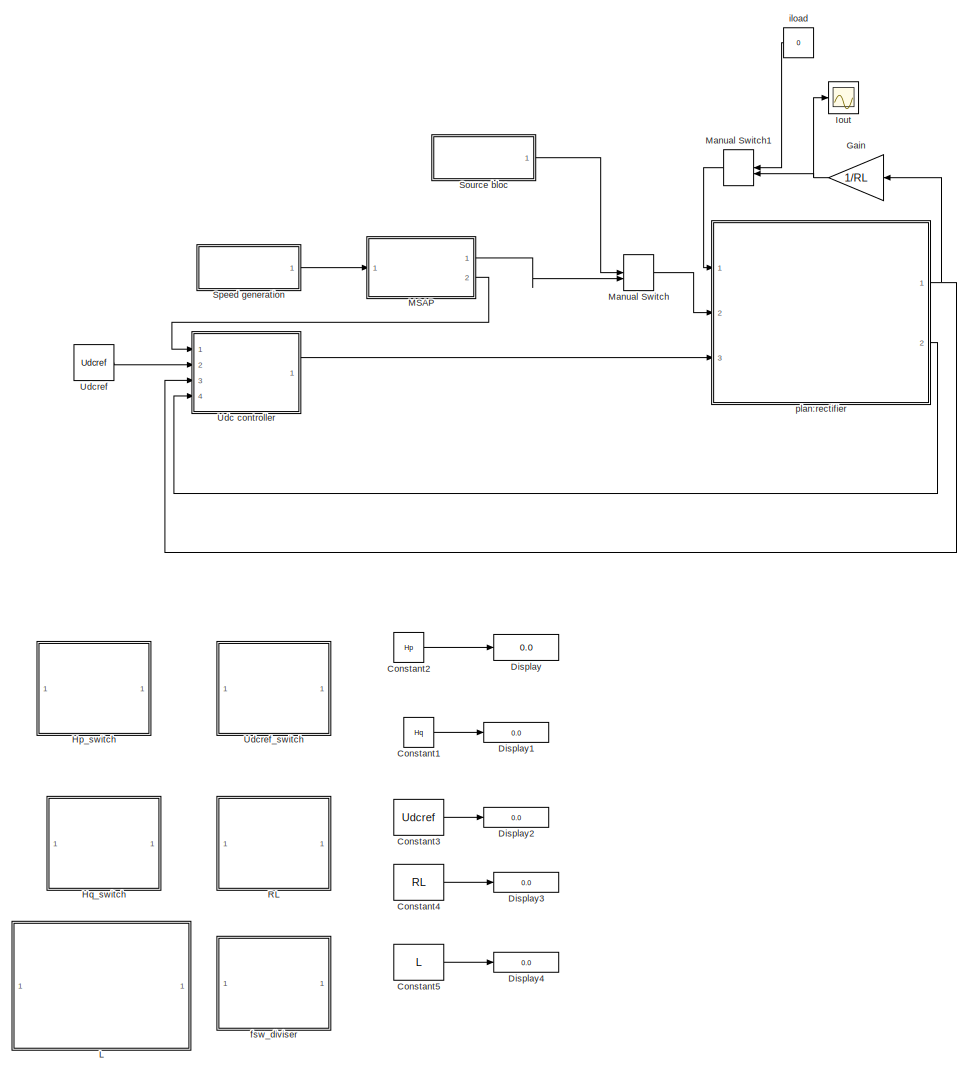
[diagram: root canvas - part 1/2, left side, full height]
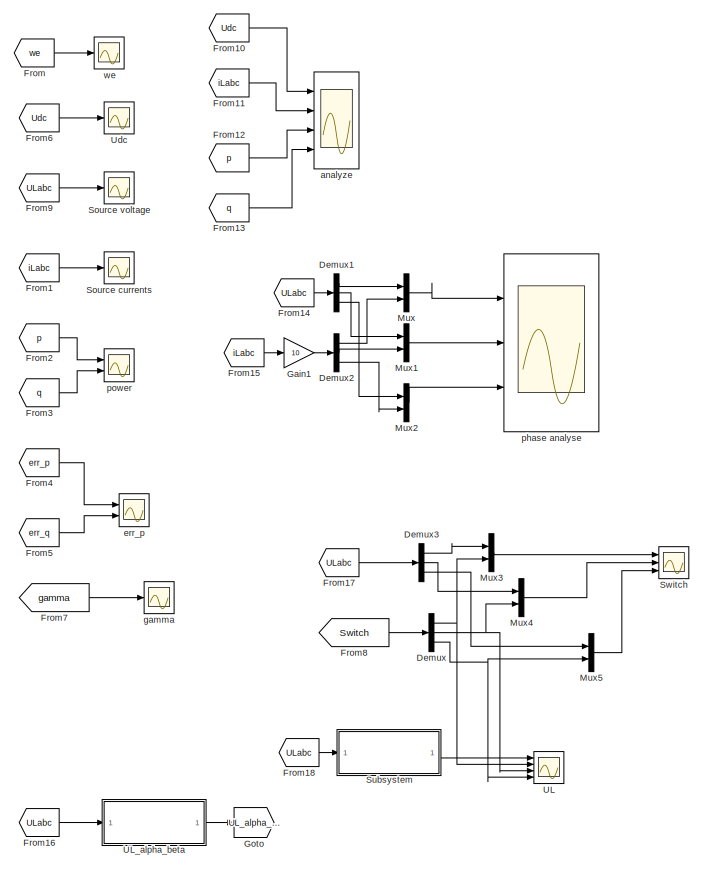
[diagram: root canvas - part 2/2, right side, full height]
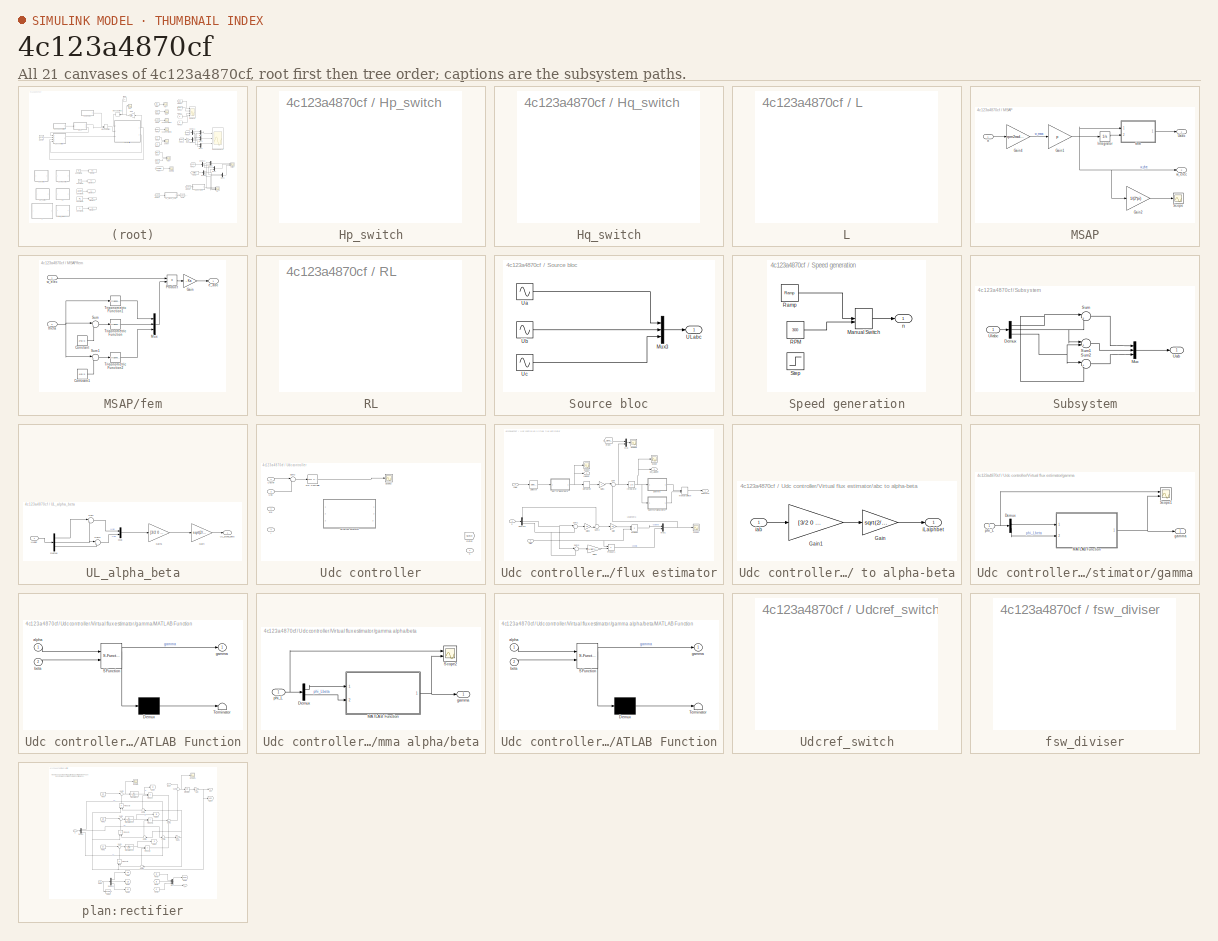
[diagram: thumbnail index - all 21 canvases of the model, root first then tree order]
MODEL slx_4c123a4870cf
KIND model
CONFIG AbsTol = auto
CONFIG FixedStep = auto
CONFIG MaxStep = auto
CONFIG MinStep = auto
CONFIG RelTol = 1e-3
CONFIG SampleTimeConstraint = Unconstrained
CONFIG Solver = ode45
CONFIG SolverMode = Auto
CONFIG SolverName = ode45
CONFIG StartTime = 0.0
CONFIG StopTime = 10.0
BLOCK [Constant] Constant1
  Value = Hq
BLOCK [Constant] Constant2
  Value = Hp
BLOCK [Constant] Constant3
  Value = Udcref
BLOCK [Constant] Constant4
  Value = RL
BLOCK [Constant] Constant5
  Value = L
BLOCK [Demux] Demux
  DisplayOption = bar
  Outputs = 3
  Ports = [1, 3]
BLOCK [Demux] Demux1
  DisplayOption = bar
  Outputs = 3
  Ports = [1, 3]
BLOCK [Demux] Demux2
  DisplayOption = bar
  Outputs = 3
  Ports = [1, 3]
BLOCK [Demux] Demux3
  DisplayOption = bar
  Outputs = 3
  Ports = [1, 3]
BLOCK [Display] Display
  Decimation = 1
  Ports = [1]
BLOCK [Display] Display1
  Decimation = 1
  Ports = [1]
BLOCK [Display] Display2
  Decimation = 1
  Ports = [1]
BLOCK [Display] Display3
  Decimation = 1
  Ports = [1]
BLOCK [Display] Display4
  Decimation = 1
  Ports = [1]
BLOCK [From] From
  GotoTag = we
BLOCK [From] From1
  GotoTag = iLabc
  TagVisibility = global
BLOCK [From] From10
  GotoTag = Udc
  TagVisibility = global
BLOCK [From] From11
  GotoTag = iLabc
  TagVisibility = global
BLOCK [From] From12
  GotoTag = p
  TagVisibility = global
BLOCK [From] From13
  GotoTag = q
  TagVisibility = global
BLOCK [From] From14
  GotoTag = ULabc
  TagVisibility = global
BLOCK [From] From15
  GotoTag = iLabc
  TagVisibility = global
BLOCK [From] From16
  GotoTag = ULabc
  TagVisibility = global
BLOCK [From] From17
  GotoTag = ULabc
  TagVisibility = global
BLOCK [From] From18
  GotoTag = ULabc
  TagVisibility = global
BLOCK [From] From2
  GotoTag = p
  TagVisibility = global
BLOCK [From] From3
  GotoTag = q
  TagVisibility = global
BLOCK [From] From4
  GotoTag = err_p
  TagVisibility = global
BLOCK [From] From5
  GotoTag = err_q
  TagVisibility = global
BLOCK [From] From6
  GotoTag = Udc
  TagVisibility = global
BLOCK [From] From7
  GotoTag = gamma
  TagVisibility = global
BLOCK [From] From8
  GotoTag = Switch
  TagVisibility = global
BLOCK [From] From9
  GotoTag = ULabc
  TagVisibility = global
BLOCK [Gain] Gain
  Gain = 1/RL
  OutDataTypeStr = Inherit: Inherit via internal rule
  ParamDataTypeStr = Inherit: Inherit via internal rule
  SaturateOnIntegerOverflow = off
BLOCK [Gain] Gain1
  Gain = 10
  OutDataTypeStr = Inherit: Inherit via internal rule
  ParamDataTypeStr = Inherit: Inherit via internal rule
  SaturateOnIntegerOverflow = off
BLOCK [Goto] Goto
  GotoTag = UL_alpha_beta
  TagVisibility = global
BLOCK [SubSystem] Hp_switch
  DialogController = hmiCreateDDGDialog
  IsWebBlock = on
  MaskHideContents = on
  Ports = []
  RequestExecContextInheritance = off
BLOCK [SubSystem] Hq_switch
  DialogController = hmiCreateDDGDialog
  IsWebBlock = on
  MaskHideContents = on
  Ports = []
  RequestExecContextInheritance = off
BLOCK [Scope] Iout
  Floating = off
  LimitDataPoints = off
  NumInputPorts = 1
  Ports = [1]
  SaveName = ScopeData13
  YMax = 0.2575
  YMin = 0.2275
BLOCK [SubSystem] L
  DialogController = hmiCreateDDGDialog
  IsWebBlock = on
  MaskHideContents = on
  Ports = []
  RequestExecContextInheritance = off
BLOCK [SubSystem] MSAP
  Ports = [1, 2]
  RequestExecContextInheritance = off
BLOCK [Gain] MSAP/Gain1
  Gain = p
  OutDataTypeStr = Inherit: Inherit via internal rule
  ParamDataTypeStr = Inherit: Inherit via internal rule
  SaturateOnIntegerOverflow = off
BLOCK [Gain] MSAP/Gain2
  Gain = 1/(2*pi)
  OutDataTypeStr = Inherit: Inherit via internal rule
  ParamDataTypeStr = Inherit: Inherit via internal rule
  SaturateOnIntegerOverflow = off
BLOCK [Gain] MSAP/Gain4
  Gain = rpm2radps
  OutDataTypeStr = Inherit: Inherit via internal rule
  ParamDataTypeStr = Inherit: Inherit via internal rule
  SaturateOnIntegerOverflow = off
BLOCK [Integrator] MSAP/Integrator
  Ports = [1, 1]
BLOCK [Scope] MSAP/Scope
  Floating = off
  NumInputPorts = 1
  Ports = [1]
  SaveName = ScopeData9
  YMax = 21
  YMin = 19
BLOCK [Outport] MSAP/Uabc
  IconDisplay = Port number
BLOCK [SubSystem] MSAP/fem
  Ports = [2, 1]
  RequestExecContextInheritance = off
BLOCK [Constant] MSAP/fem/Constant
  Value = 2*pi/3
BLOCK [Constant] MSAP/fem/Constant1
  Value = 4*pi/3
BLOCK [Gain] MSAP/fem/Gain
  Gain = - Ka
  OutDataTypeStr = Inherit: Inherit via internal rule
  ParamDataTypeStr = Inherit: Inherit via internal rule
  SaturateOnIntegerOverflow = off
BLOCK [Mux] MSAP/fem/Mux
  DisplayOption = bar
  Inputs = 3
  Ports = [3, 1]
BLOCK [Product] MSAP/fem/Product
  InputSameDT = off
  OutDataTypeStr = Inherit: Inherit via internal rule
  Ports = [2, 1]
  RndMeth = Floor
  SaturateOnIntegerOverflow = off
BLOCK [Sum] MSAP/fem/Sum
  IconShape = round
  InputSameDT = off
  Inputs = |+-
  OutDataTypeStr = Inherit: Inherit via internal rule
  Ports = [2, 1]
  SaturateOnIntegerOverflow = off
BLOCK [Sum] MSAP/fem/Sum1
  IconShape = round
  InputSameDT = off
  Inputs = |+-
  OutDataTypeStr = Inherit: Inherit via internal rule
  Ports = [2, 1]
  SaturateOnIntegerOverflow = off
BLOCK [Trigonometry] MSAP/fem/Trigonometric Function
  Ports = [1, 1]
BLOCK [Trigonometry] MSAP/fem/Trigonometric Function1
  Ports = [1, 1]
BLOCK [Trigonometry] MSAP/fem/Trigonometric Function2
  Ports = [1, 1]
BLOCK [Outport] MSAP/fem/e_abc
  IconDisplay = Port number
BLOCK [Inport] MSAP/fem/theta
  IconDisplay = Port number
  Port = 2
BLOCK [Inport] MSAP/fem/w_elec
  IconDisplay = Port number
BLOCK [Inport] MSAP/n
  IconDisplay = Port number
BLOCK [Outport] MSAP/w_elec
  IconDisplay = Port number
  Port = 2
BLOCK [ManualSwitch] Manual Switch
  CurrentSetting = 0
BLOCK [ManualSwitch] Manual Switch1
  CurrentSetting = 0
BLOCK [Mux] Mux
  DisplayOption = bar
  Inputs = 2
  Ports = [2, 1]
BLOCK [Mux] Mux1
  DisplayOption = bar
  Inputs = 2
  Ports = [2, 1]
BLOCK [Mux] Mux2
  DisplayOption = bar
  Inputs = 2
  Ports = [2, 1]
BLOCK [Mux] Mux3
  DisplayOption = bar
  Inputs = 2
  Ports = [2, 1]
BLOCK [Mux] Mux4
  DisplayOption = bar
  Inputs = 2
  Ports = [2, 1]
BLOCK [Mux] Mux5
  DisplayOption = bar
  Inputs = 2
  Ports = [2, 1]
BLOCK [SubSystem] RL
  DialogController = hmiCreateDDGDialog
  IsWebBlock = on
  MaskHideContents = on
  Ports = []
  RequestExecContextInheritance = off
BLOCK [SubSystem] Source bloc
  Ports = [0, 1]
  RequestExecContextInheritance = off
BLOCK [Mux] Source bloc/Mux3
  DisplayOption = bar
  Inputs = 3
  Ports = [3, 1]
BLOCK [Outport] Source bloc/ULabc
  IconDisplay = Port number
BLOCK [Sin] Source bloc/Ua
  Amplitude = U
  Frequency = w
  Ports = [0, 1]
  SampleTime = 0
BLOCK [Sin] Source bloc/Ub
  Amplitude = U
  Frequency = w
  Phase = -2*pi/3
  Ports = [0, 1]
  SampleTime = 0
BLOCK [Sin] Source bloc/Uc
  Amplitude = U
  Frequency = w
  Phase = -4*pi/3
  Ports = [0, 1]
  SampleTime = 0
BLOCK [Scope] Source currents
  Floating = off
  LimitDataPoints = off
  NumInputPorts = 1
  Ports = [1]
  SaveName = Iabc
  TimeRange = 2
  YMax = 2.25
  YMin = -3
  ZoomMode = xonly
BLOCK [Scope] Source voltage 
  Floating = off
  LimitDataPoints = off
  NumInputPorts = 1
  Ports = [1]
  SaveName = Uabc
  TimeRange = 0.06239913932221623
  YMax = 20
  YMin = -20
  ZoomMode = xonly
BLOCK [SubSystem] Speed generation
  Ports = [0, 1]
  RequestExecContextInheritance = off
BLOCK [ManualSwitch] Speed generation/Manual Switch
  CurrentSetting = 0
BLOCK [Constant] Speed generation/RPM
  Value = 300
BLOCK [Reference] Speed generation/Ramp  REF=simulink/Sources/Ramp
  Ports = [0, 1]
  SourceBlock = simulink/Sources/Ramp
  SourceType = Ramp
  VectorParams1D = on
  X0 = 100
  slope = 50
  start = 0
BLOCK [Step] Speed generation/Step
  After = 0
  SampleTime = 0
  Time = 1.5
BLOCK [Outport] Speed generation/n
  IconDisplay = Port number
BLOCK [SubSystem] Subsystem
  Ports = [1, 1]
  RequestExecContextInheritance = off
BLOCK [Demux] Subsystem/Demux
  DisplayOption = bar
  Outputs = 3
  Ports = [1, 3]
BLOCK [Mux] Subsystem/Mux
  DisplayOption = bar
  Inputs = 3
  Ports = [3, 1]
BLOCK [Sum] Subsystem/Sum
  IconShape = round
  InputSameDT = off
  Inputs = |+-
  OutDataTypeStr = Inherit: Inherit via internal rule
  Ports = [2, 1]
  SaturateOnIntegerOverflow = off
BLOCK [Sum] Subsystem/Sum1
  IconShape = round
  InputSameDT = off
  Inputs = |+-
  OutDataTypeStr = Inherit: Inherit via internal rule
  Ports = [2, 1]
  SaturateOnIntegerOverflow = off
BLOCK [Sum] Subsystem/Sum2
  IconShape = round
  InputSameDT = off
  Inputs = |+-
  OutDataTypeStr = Inherit: Inherit via internal rule
  Ports = [2, 1]
  SaturateOnIntegerOverflow = off
BLOCK [Outport] Subsystem/Uab 
  IconDisplay = Port number
BLOCK [Inport] Subsystem/Ulabc
  IconDisplay = Port number
BLOCK [Scope] Switch
  Floating = off
  LimitDataPoints = off
  NumInputPorts = 3
  Ports = [3]
  SaveName = ScopeData8
  YMax = 5~5~5
  YMin = -2~-5~-5
  ZoomMode = xonly
BLOCK [Scope] UL 
  Floating = off
  LimitDataPoints = off
  NumInputPorts = 4
  Ports = [4]
  SaveName = ScopeData19
  YMax = 5~5~5~5
  YMin = -2~-5~-5~-5
  ZoomMode = xonly
BLOCK [SubSystem] UL_alpha_beta
  Ports = [1, 1]
  RequestExecContextInheritance = off
BLOCK [Demux] UL_alpha_beta/Demux
  DisplayOption = bar
  Outputs = 3
  Ports = [1, 3]
BLOCK [Gain] UL_alpha_beta/Gain
  Gain = sqrt(2/3)
  OutDataTypeStr = Inherit: Inherit via internal rule
  ParamDataTypeStr = Inherit: Inherit via internal rule
  SaturateOnIntegerOverflow = off
BLOCK [Gain] UL_alpha_beta/Gain1
  Gain = [3/2 0 ; sqrt(3)/2 sqrt(3)]
  Multiplication = Matrix(K*u)
  OutDataTypeStr = Inherit: Inherit via internal rule
  ParamDataTypeStr = Inherit: Inherit via internal rule
  SaturateOnIntegerOverflow = off
BLOCK [Mux] UL_alpha_beta/Mux
  DisplayOption = bar
  Inputs = 2
  Ports = [2, 1]
BLOCK [Sum] UL_alpha_beta/Sum
  IconShape = round
  InputSameDT = off
  Inputs = |+-
  OutDataTypeStr = Inherit: Inherit via internal rule
  Ports = [2, 1]
  SaturateOnIntegerOverflow = off
BLOCK [Sum] UL_alpha_beta/Sum1
  IconShape = round
  InputSameDT = off
  Inputs = |+-
  OutDataTypeStr = Inherit: Inherit via internal rule
  Ports = [2, 1]
  SaturateOnIntegerOverflow = off
BLOCK [Outport] UL_alpha_beta/UL_alpha_beta
  IconDisplay = Port number
BLOCK [Inport] UL_alpha_beta/ULabc
  IconDisplay = Port number
BLOCK [Scope] Udc
  Floating = off
  LimitDataPoints = off
  NumInputPorts = 1
  Ports = [1]
  SaveName = Udc
  TimeRange = 3
  YMax = 21.5
  YMin = 15
BLOCK [SubSystem] Udc controller
  Ports = [4, 1]
  RequestExecContextInheritance = off
BLOCK [Goto] Udc controller/Goto2
  GotoTag = Switch
  TagVisibility = global
BLOCK [Inport] Udc controller/I
  IconDisplay = Port number
  Port = 4
BLOCK [Reference] Udc controller/PID Controller  REF=simulink/Continuous/PID Controller
  AntiWindupMode = none
  Controller = PI
  ControllerParametersSource = internal
  D = 0
  DGainOutDataTypeStr = Inherit: Inherit via internal rule
  DOutDataTypeStr = Inherit: Inherit via internal rule
  DOutMax = []
  DOutMin = []
  DParamDataTypeStr = Inherit: Inherit via internal rule
  DParamMax = []
  DParamMin = []
  DProdOutDataTypeStr = Inherit: Inherit via internal rule
  DifferentiatorICPrevScaledInput = 0
  DifferentiatorOutDataTypeStr = Inherit: Inherit via internal rule
  DifferentiatorOutMax = []
  DifferentiatorOutMin = []
  ExternalReset = none
  FilterContinuousStateAttributes = ''
  FilterMethod = Forward Euler
  FilterOutDataTypeStr = Inherit: Inherit via internal rule
  FilterOutMax = []
  FilterOutMin = []
  FilterRTWStateStorageClass = Auto
  FilterStateMustResolveToSignalObject = off
  Form = Parallel
  I = I
  IGainOutDataTypeStr = Inherit: Inherit via internal rule
  IOutDataTypeStr = Inherit: Inherit via internal rule
  IOutMax = []
  IOutMin = []
  IParamDataTypeStr = Inherit: Inherit via internal rule
  IParamMax = []
  IParamMin = []
  IProdOutDataTypeStr = Inherit: Inherit via internal rule
  IgnoreLimit = off
  InitialConditionForFilter = 0
  InitialConditionForIntegrator = 0
  InitialConditionSource = internal
  IntegratorContinuousStateAttributes = ''
  IntegratorMethod = Forward Euler
  IntegratorOutDataTypeStr = Inherit: Inherit via internal rule
  IntegratorOutMax = []
  IntegratorOutMin = []
  IntegratorRTWStateStorageClass = Auto
  IntegratorStateMustResolveToSignalObject = off
  Kb = 1
  KbOutDataTypeStr = Inherit: Inherit via internal rule
  KbOutMax = []
  KbOutMin = []
  KbParamDataTypeStr = Inherit: Inherit via internal rule
  KbParamMax = []
  KbParamMin = []
  Kt = 1
  KtOutDataTypeStr = Inherit: Inherit via internal rule
  KtOutMax = []
  KtOutMin = []
  KtParamDataTypeStr = Inherit: Inherit via internal rule
  KtParamMax = []
  KtParamMin = []
  LimitOutput = off
  LinearizeAsGain = on
  LockScale = off
  LowerSaturationLimit = -inf
  N = 100
  NGainOutDataTypeStr = Inherit: Inherit via internal rule
  NOutDataTypeStr = Inherit: Inherit via internal rule
  NOutMax = []
  NOutMin = []
  NParamDataTypeStr = Inherit: Inherit via internal rule
  NParamMax = []
  NParamMin = []
  NProdOutDataTypeStr = Inherit: Inherit via internal rule
  P = P
  PGainOutDataTypeStr = Inherit: Inherit via internal rule
  POutDataTypeStr = Inherit: Inherit via internal rule
  POutMax = []
  POutMin = []
  PParamDataTypeStr = Inherit: Inherit via internal rule
  PParamMax = []
  PParamMin = []
  PProdOutDataTypeStr = Inherit: Inherit via internal rule
  Ports = [1, 1]
  RndMeth = Floor
  SampleTime = -1
  SaturateOnIntegerOverflow = off
  SaturationOutDataTypeStr = Inherit: Same as input
  SaturationOutMax = []
  SaturationOutMin = []
  SourceBlock = simulink/Continuous/PID Controller
  SourceType = PID 1dof
  SumAccumDataTypeStr = Inherit: Inherit via internal rule
  SumDAccumDataTypeStr = Inherit: Inherit via internal rule
  SumDOutDataTypeStr = Inherit: Inherit via internal rule
  SumDOutMax = []
  SumDOutMin = []
  SumI1AccumDataTypeStr = Inherit: Inherit via internal rule
  SumI1OutDataTypeStr = Inherit: Inherit via internal rule
  SumI1OutMax = []
  SumI1OutMin = []
  SumI2AccumDataTypeStr = Inherit: Inherit via internal rule
  SumI2OutDataTypeStr = Inherit: Inherit via internal rule
  SumI2OutMax = []
  SumI2OutMin = []
  SumI3AccumDataTypeStr = Inherit: Inherit via internal rule
  SumI3OutDataTypeStr = Inherit: Inherit via internal rule
  SumI3OutMax = []
  SumI3OutMin = []
  SumOutDataTypeStr = Inherit: Inherit via internal rule
  SumOutMax = []
  SumOutMin = []
  TimeDomain = Continuous-time
  TrackingMode = off
  UpperSaturationLimit = inf
  UseFilter = on
  ZeroCross = on
BLOCK [Outport] Udc controller/S
  IconDisplay = Port number
BLOCK [Scope] Udc controller/Scope2
  Floating = off
  LimitDataPoints = off
  NumInputPorts = 1
  Ports = [1]
  SaveName = ScopeData17
  YMax = 265
  YMin = 230
  ZoomMode = xonly
BLOCK [Sum] Udc controller/Sum2
  IconShape = round
  InputSameDT = off
  Inputs = |+-
  OutDataTypeStr = Inherit: Inherit via internal rule
  Ports = [2, 1]
  SaturateOnIntegerOverflow = off
BLOCK [Inport] Udc controller/Udc
  IconDisplay = Port number
  Port = 3
BLOCK [Inport] Udc controller/Udcref
  IconDisplay = Port number
  Port = 2
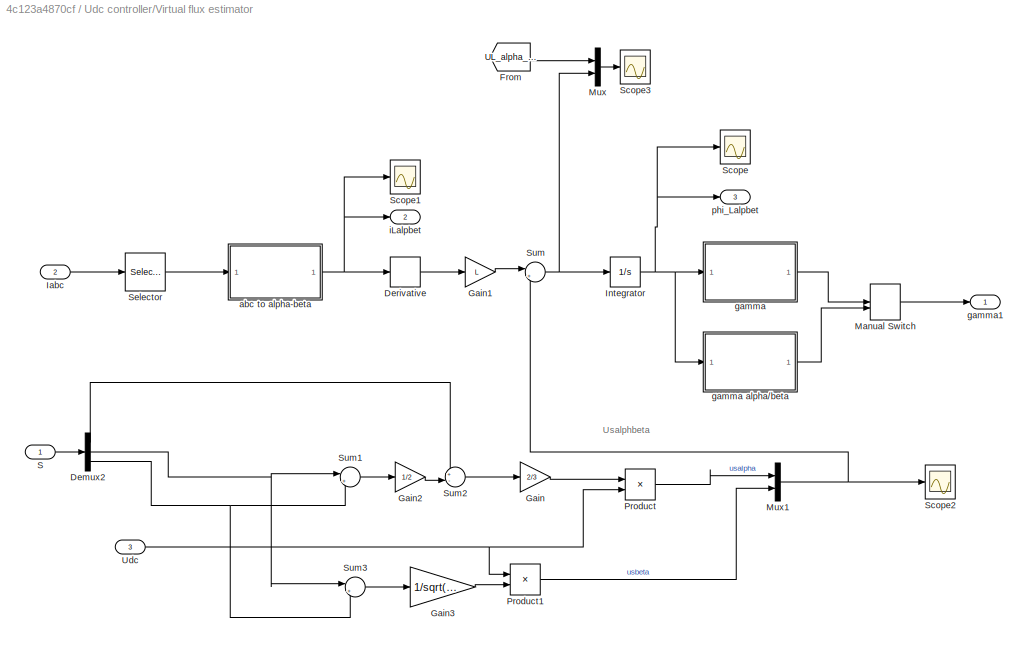
BLOCK [SubSystem] Udc controller/Virtual flux estimator
  Ports = [3, 3]
  RequestExecContextInheritance = off
BLOCK [Demux] Udc controller/Virtual flux estimator/Demux2
  DisplayOption = bar
  Outputs = 3
  Ports = [1, 3]
BLOCK [Derivative] Udc controller/Virtual flux estimator/Derivative
BLOCK [From] Udc controller/Virtual flux estimator/From
  GotoTag = UL_alpha_beta
  TagVisibility = global
BLOCK [Gain] Udc controller/Virtual flux estimator/Gain
  Gain = 2/3
  OutDataTypeStr = Inherit: Inherit via internal rule
  ParamDataTypeStr = Inherit: Inherit via internal rule
  SaturateOnIntegerOverflow = off
BLOCK [Gain] Udc controller/Virtual flux estimator/Gain1
  Gain = L
  OutDataTypeStr = Inherit: Inherit via internal rule
  ParamDataTypeStr = Inherit: Inherit via internal rule
  SaturateOnIntegerOverflow = off
BLOCK [Gain] Udc controller/Virtual flux estimator/Gain2
  Gain = 1/2
  OutDataTypeStr = Inherit: Inherit via internal rule
  ParamDataTypeStr = Inherit: Inherit via internal rule
  SaturateOnIntegerOverflow = off
BLOCK [Gain] Udc controller/Virtual flux estimator/Gain3
  Gain = 1/sqrt(3)
  OutDataTypeStr = Inherit: Inherit via internal rule
  ParamDataTypeStr = Inherit: Inherit via internal rule
  SaturateOnIntegerOverflow = off
BLOCK [Inport] Udc controller/Virtual flux estimator/Iabc
  IconDisplay = Port number
  Port = 2
BLOCK [Integrator] Udc controller/Virtual flux estimator/Integrator
  Ports = [1, 1]
BLOCK [ManualSwitch] Udc controller/Virtual flux estimator/Manual Switch
BLOCK [Mux] Udc controller/Virtual flux estimator/Mux
  DisplayOption = bar
  Inputs = 2
  Ports = [2, 1]
BLOCK [Mux] Udc controller/Virtual flux estimator/Mux1
  DisplayOption = bar
  Inputs = 2
  Ports = [2, 1]
BLOCK [Product] Udc controller/Virtual flux estimator/Product
  InputSameDT = off
  OutDataTypeStr = Inherit: Inherit via internal rule
  Ports = [2, 1]
  RndMeth = Floor
  SaturateOnIntegerOverflow = off
BLOCK [Product] Udc controller/Virtual flux estimator/Product1
  InputSameDT = off
  OutDataTypeStr = Inherit: Inherit via internal rule
  Ports = [2, 1]
  RndMeth = Floor
  SaturateOnIntegerOverflow = off
BLOCK [Inport] Udc controller/Virtual flux estimator/S
  IconDisplay = Port number
BLOCK [Scope] Udc controller/Virtual flux estimator/Scope
  Floating = off
  LegendLocations = 0.92118     0.91727    0.058854    0.037539
  LimitDataPoints = off
  NumInputPorts = 1
  Ports = [1]
  ShowLegends = on
  YMax = 0.45
  YMin = -0.45
  ZoomMode = xonly
BLOCK [Scope] Udc controller/Virtual flux estimator/Scope1
  Floating = off
  LimitDataPoints = off
  NumInputPorts = 1
  Ports = [1]
  SaveName = ScopeData1
  YMax = 450
  YMin = -450
  ZoomMode = xonly
BLOCK [Scope] Udc controller/Virtual flux estimator/Scope2
  Floating = off
  LimitDataPoints = off
  NumInputPorts = 1
  Ports = [1]
  SaveName = ScopeData4
  ShowLegends = on
  YMax = 8
  YMin = -8
  ZoomMode = xonly
BLOCK [Scope] Udc controller/Virtual flux estimator/Scope3
  Floating = off
  LegendLocations = 0.93264      0.8846    0.047396    0.070212
  LimitDataPoints = off
  NumInputPorts = 1
  Ports = [1]
  SaveName = ScopeData11
  ShowLegends = on
  YMax = 40
  YMin = -40
  ZoomMode = xonly
BLOCK [Selector] Udc controller/Virtual flux estimator/Selector
  Indices = [1 2]
  InputPortWidth = 3
  Ports = [1, 1]
BLOCK [Sum] Udc controller/Virtual flux estimator/Sum
  IconShape = round
  InputSameDT = off
  Inputs = |++
  OutDataTypeStr = Inherit: Inherit via internal rule
  Ports = [2, 1]
  SaturateOnIntegerOverflow = off
BLOCK [Sum] Udc controller/Virtual flux estimator/Sum1
  IconShape = round
  InputSameDT = off
  Inputs = |++
  OutDataTypeStr = Inherit: Inherit via internal rule
  Ports = [2, 1]
  SaturateOnIntegerOverflow = off
BLOCK [Sum] Udc controller/Virtual flux estimator/Sum2
  IconShape = round
  InputSameDT = off
  Inputs = +-|
  OutDataTypeStr = Inherit: Inherit via internal rule
  Ports = [2, 1]
  SaturateOnIntegerOverflow = off
BLOCK [Sum] Udc controller/Virtual flux estimator/Sum3
  IconShape = round
  InputSameDT = off
  Inputs = |+-
  OutDataTypeStr = Inherit: Inherit via internal rule
  Ports = [2, 1]
  SaturateOnIntegerOverflow = off
BLOCK [Inport] Udc controller/Virtual flux estimator/Udc
  IconDisplay = Port number
  Port = 3
BLOCK [SubSystem] Udc controller/Virtual flux estimator/abc to alpha-beta
  Ports = [1, 1]
  RequestExecContextInheritance = off
BLOCK [Gain] Udc controller/Virtual flux estimator/abc to alpha-beta/Gain
  Gain = sqrt(2/3)
  OutDataTypeStr = Inherit: Inherit via internal rule
  ParamDataTypeStr = Inherit: Inherit via internal rule
  SaturateOnIntegerOverflow = off
BLOCK [Gain] Udc controller/Virtual flux estimator/abc to alpha-beta/Gain1
  Gain = [3/2 0 ; sqrt(3)/2 sqrt(3)]
  Multiplication = Matrix(K*u)
  OutDataTypeStr = Inherit: Inherit via internal rule
  ParamDataTypeStr = Inherit: Inherit via internal rule
  SaturateOnIntegerOverflow = off
BLOCK [Outport] Udc controller/Virtual flux estimator/abc to alpha-beta/iLalphbet
  IconDisplay = Port number
BLOCK [Inport] Udc controller/Virtual flux estimator/abc to alpha-beta/iab
  IconDisplay = Port number
BLOCK [SubSystem] Udc controller/Virtual flux estimator/gamma
  Ports = [1, 1]
  RequestExecContextInheritance = off
BLOCK [SubSystem] Udc controller/Virtual flux estimator/gamma alpha//beta
  Ports = [1, 1]
  RequestExecContextInheritance = off
BLOCK [Demux] Udc controller/Virtual flux estimator/gamma alpha//beta/Demux
  DisplayOption = bar
  Outputs = 2
  Ports = [1, 2]
BLOCK [SubSystem] Udc controller/Virtual flux estimator/gamma alpha//beta/MATLAB Function
  ErrorFcn = Stateflow.Translate.translate
  PermitHierarchicalResolution = ExplicitOnly
  Ports = [2, 1]
  RequestExecContextInheritance = off
  SFBlockType = MATLAB Function
  TreatAsAtomicUnit = on
BLOCK [Demux] Udc controller/Virtual flux estimator/gamma alpha//beta/MATLAB Function/ Demux 
  Outputs = 1
  Ports = [1, 1]
BLOCK [S-Function] Udc controller/Virtual flux estimator/gamma alpha//beta/MATLAB Function/ SFunction 
  EnableBusSupport = on
  FunctionName = sf_sfun
  PortCounts = [2 2]
  Ports = [2, 2]
  Tag = Stateflow S-Function VFOC 6
BLOCK [Terminator] Udc controller/Virtual flux estimator/gamma alpha//beta/MATLAB Function/ Terminator 
BLOCK [Inport] Udc controller/Virtual flux estimator/gamma alpha//beta/MATLAB Function/alpha
  IconDisplay = Port number
BLOCK [Inport] Udc controller/Virtual flux estimator/gamma alpha//beta/MATLAB Function/beta
  IconDisplay = Port number
  Port = 2
BLOCK [Outport] Udc controller/Virtual flux estimator/gamma alpha//beta/MATLAB Function/gamma
  IconDisplay = Port number
BLOCK [Scope] Udc controller/Virtual flux estimator/gamma alpha//beta/Scope2
  Floating = off
  LimitDataPoints = off
  NumInputPorts = 2
  Ports = [2]
  SaveName = ScopeData15
  YMax = 1.75~300
  YMin = -1.75~-500
  ZoomMode = xonly
BLOCK [Outport] Udc controller/Virtual flux estimator/gamma alpha//beta/gamma
  IconDisplay = Port number
BLOCK [Inport] Udc controller/Virtual flux estimator/gamma alpha//beta/phi_L
  IconDisplay = Port number
BLOCK [Demux] Udc controller/Virtual flux estimator/gamma/Demux
  DisplayOption = bar
  Outputs = 2
  Ports = [1, 2]
BLOCK [SubSystem] Udc controller/Virtual flux estimator/gamma/MATLAB Function
  ErrorFcn = Stateflow.Translate.translate
  PermitHierarchicalResolution = ExplicitOnly
  Ports = [2, 1]
  RequestExecContextInheritance = off
  SFBlockType = MATLAB Function
  TreatAsAtomicUnit = on
BLOCK [Demux] Udc controller/Virtual flux estimator/gamma/MATLAB Function/ Demux 
  Outputs = 1
  Ports = [1, 1]
BLOCK [S-Function] Udc controller/Virtual flux estimator/gamma/MATLAB Function/ SFunction 
  EnableBusSupport = on
  FunctionName = sf_sfun
  PortCounts = [2 2]
  Ports = [2, 2]
  Tag = Stateflow S-Function VFOC 3
BLOCK [Terminator] Udc controller/Virtual flux estimator/gamma/MATLAB Function/ Terminator 
BLOCK [Inport] Udc controller/Virtual flux estimator/gamma/MATLAB Function/alpha
  IconDisplay = Port number
BLOCK [Inport] Udc controller/Virtual flux estimator/gamma/MATLAB Function/beta
  IconDisplay = Port number
  Port = 2
BLOCK [Outport] Udc controller/Virtual flux estimator/gamma/MATLAB Function/gamma
  IconDisplay = Port number
BLOCK [Scope] Udc controller/Virtual flux estimator/gamma/Scope1
  Floating = off
  LegendLocations = 0.9316     0.91727    0.048437    0.037539\n0.90399     0.45812    0.076042    0.021203
  LimitDataPoints = off
  NumInputPorts = 2
  Ports = [2]
  SaveName = ScopeData3
  ShowLegends = on
  YMax = 0.3~6.5
  YMin = -0.3~0
  ZoomMode = xonly
BLOCK [Outport] Udc controller/Virtual flux estimator/gamma/gamma
  IconDisplay = Port number
BLOCK [Inport] Udc controller/Virtual flux estimator/gamma/phi_L
  IconDisplay = Port number
BLOCK [Outport] Udc controller/Virtual flux estimator/gamma1
  IconDisplay = Port number
BLOCK [Outport] Udc controller/Virtual flux estimator/iLalpbet
  IconDisplay = Port number
  Port = 2
BLOCK [Outport] Udc controller/Virtual flux estimator/phi_Lalpbet
  IconDisplay = Port number
  Port = 3
BLOCK [Inport] Udc controller/we
  IconDisplay = Port number
BLOCK [Constant] Udcref
  Value = Udcref
BLOCK [SubSystem] Udcref_switch
  DialogController = hmiCreateDDGDialog
  IsWebBlock = on
  MaskHideContents = on
  Ports = []
  RequestExecContextInheritance = off
BLOCK [Scope] analyze
  Floating = off
  LimitDataPoints = off
  NumInputPorts = 4
  Ports = [4]
  SaveName = Uabc1
  TimeRange = 0.06239913932221623
  YMax = 20~1.75~100~100
  YMin = 0~-1.75~-25~-5
BLOCK [Scope] err_p
  Floating = off
  LimitDataPoints = off
  NumInputPorts = 2
  Ports = [2]
  SaveName = err_p
  TimeRange = 2
  YMax = 40~0
  YMin = -40~-65
  ZoomMode = xonly
BLOCK [SubSystem] fsw_diviser
  DialogController = hmiCreateDDGDialog
  IsWebBlock = on
  MaskHideContents = on
  Ports = []
  RequestExecContextInheritance = off
BLOCK [Scope] gamma
  Floating = off
  LimitDataPoints = off
  NumInputPorts = 1
  Ports = [1]
  SaveName = ScopeData5
  YMin = -2
  ZoomMode = xonly
BLOCK [Constant] iload
  Value = 0
BLOCK [Scope] phase analyse
  Floating = off
  LimitDataPoints = off
  NumInputPorts = 3
  Ports = [3]
  SaveName = Uabc2
  TimeRange = 0.06239913932221623
  YMax = 30~30~30
  YMin = -30~-30~-30
  ZoomMode = xonly
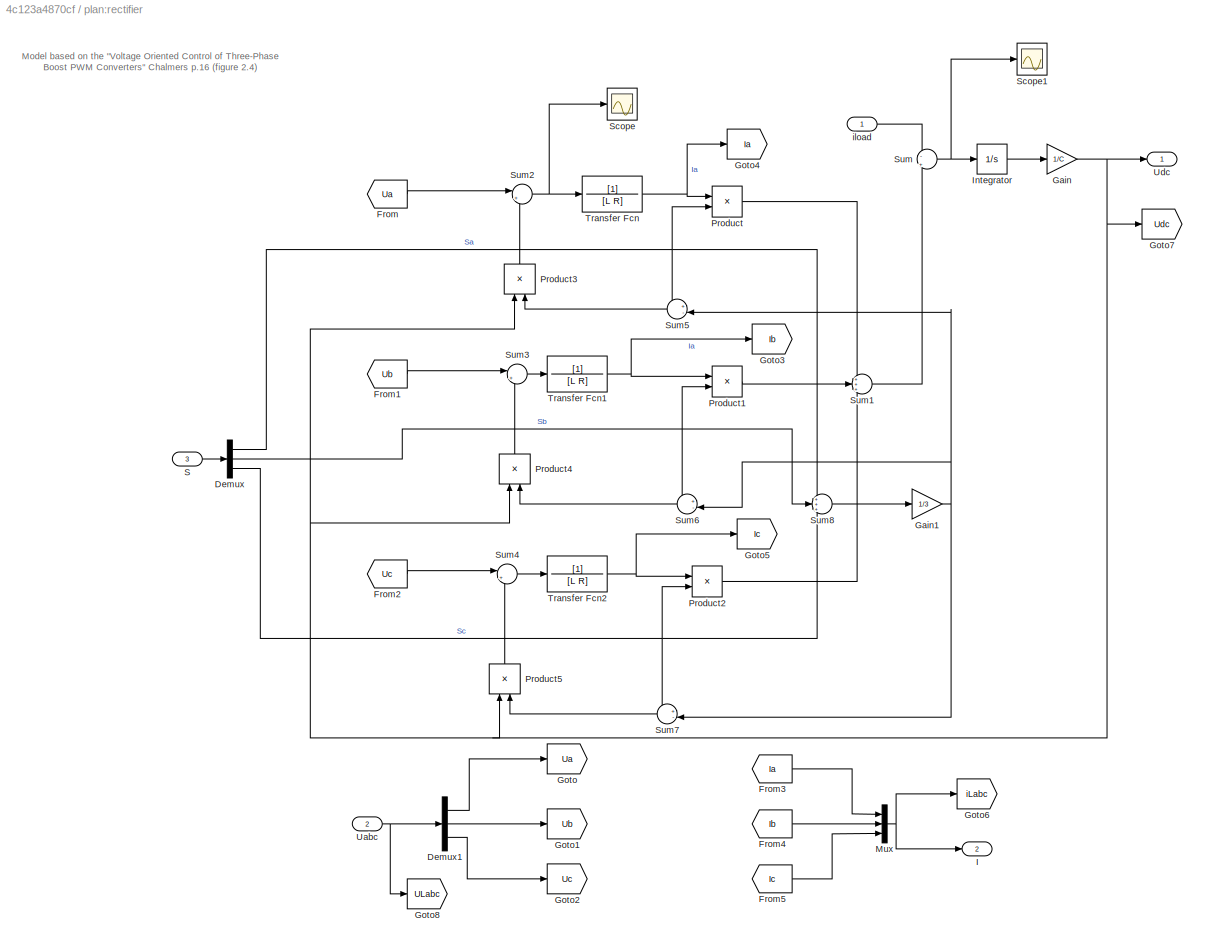
BLOCK [SubSystem] plan:rectifier
  Ports = [3, 2]
  RequestExecContextInheritance = off
BLOCK [Demux] plan:rectifier/Demux
  DisplayOption = bar
  Outputs = 3
  Ports = [1, 3]
BLOCK [Demux] plan:rectifier/Demux1
  DisplayOption = bar
  Outputs = 3
  Ports = [1, 3]
BLOCK [From] plan:rectifier/From
  GotoTag = Ua
BLOCK [From] plan:rectifier/From1
  GotoTag = Ub
BLOCK [From] plan:rectifier/From2
  GotoTag = Uc
BLOCK [From] plan:rectifier/From3
  GotoTag = Ia
BLOCK [From] plan:rectifier/From4
  GotoTag = Ib
BLOCK [From] plan:rectifier/From5
  GotoTag = Ic
BLOCK [Gain] plan:rectifier/Gain
  Gain = 1/C
  OutDataTypeStr = Inherit: Inherit via internal rule
  ParamDataTypeStr = Inherit: Inherit via internal rule
  SaturateOnIntegerOverflow = off
BLOCK [Gain] plan:rectifier/Gain1
  Gain = 1/3
  OutDataTypeStr = Inherit: Inherit via internal rule
  ParamDataTypeStr = Inherit: Inherit via internal rule
  SaturateOnIntegerOverflow = off
BLOCK [Goto] plan:rectifier/Goto
  GotoTag = Ua
BLOCK [Goto] plan:rectifier/Goto1
  GotoTag = Ub
BLOCK [Goto] plan:rectifier/Goto2
  GotoTag = Uc
BLOCK [Goto] plan:rectifier/Goto3
  GotoTag = Ib
BLOCK [Goto] plan:rectifier/Goto4
  GotoTag = Ia
BLOCK [Goto] plan:rectifier/Goto5
  GotoTag = Ic
BLOCK [Goto] plan:rectifier/Goto6
  GotoTag = iLabc
  TagVisibility = global
BLOCK [Goto] plan:rectifier/Goto7
  GotoTag = Udc
  TagVisibility = global
BLOCK [Goto] plan:rectifier/Goto8
  GotoTag = ULabc
  TagVisibility = global
BLOCK [Outport] plan:rectifier/I
  IconDisplay = Port number
  Port = 2
BLOCK [Integrator] plan:rectifier/Integrator
  Ports = [1, 1]
BLOCK [Mux] plan:rectifier/Mux
  DisplayOption = bar
  Inputs = 3
  Ports = [3, 1]
BLOCK [Product] plan:rectifier/Product
  InputSameDT = off
  OutDataTypeStr = Inherit: Inherit via internal rule
  Ports = [2, 1]
  RndMeth = Floor
  SaturateOnIntegerOverflow = off
BLOCK [Product] plan:rectifier/Product1
  InputSameDT = off
  OutDataTypeStr = Inherit: Inherit via internal rule
  Ports = [2, 1]
  RndMeth = Floor
  SaturateOnIntegerOverflow = off
BLOCK [Product] plan:rectifier/Product2
  InputSameDT = off
  OutDataTypeStr = Inherit: Inherit via internal rule
  Ports = [2, 1]
  RndMeth = Floor
  SaturateOnIntegerOverflow = off
BLOCK [Product] plan:rectifier/Product3
  InputSameDT = off
  OutDataTypeStr = Inherit: Inherit via internal rule
  Ports = [2, 1]
  RndMeth = Floor
  SaturateOnIntegerOverflow = off
BLOCK [Product] plan:rectifier/Product4
  InputSameDT = off
  OutDataTypeStr = Inherit: Inherit via internal rule
  Ports = [2, 1]
  RndMeth = Floor
  SaturateOnIntegerOverflow = off
BLOCK [Product] plan:rectifier/Product5
  InputSameDT = off
  OutDataTypeStr = Inherit: Inherit via internal rule
  Ports = [2, 1]
  RndMeth = Floor
  SaturateOnIntegerOverflow = off
BLOCK [Inport] plan:rectifier/S
  IconDisplay = Port number
  Port = 3
BLOCK [Scope] plan:rectifier/Scope
  Floating = off
  NumInputPorts = 1
  Ports = [1]
  SaveName = ScopeData14
  ZoomMode = xonly
BLOCK [Scope] plan:rectifier/Scope1
  Floating = off
  NumInputPorts = 1
  Ports = [1]
  SaveName = ScopeData12
BLOCK [Sum] plan:rectifier/Sum
  IconShape = round
  InputSameDT = off
  Inputs = -|+
  OutDataTypeStr = Inherit: Inherit via internal rule
  Ports = [2, 1]
  SaturateOnIntegerOverflow = off
BLOCK [Sum] plan:rectifier/Sum1
  IconShape = round
  InputSameDT = off
  Inputs = +++
  OutDataTypeStr = Inherit: Inherit via internal rule
  Ports = [3, 1]
  SaturateOnIntegerOverflow = off
BLOCK [Sum] plan:rectifier/Sum2
  IconShape = round
  InputSameDT = off
  Inputs = |+-
  OutDataTypeStr = Inherit: Inherit via internal rule
  Ports = [2, 1]
  SaturateOnIntegerOverflow = off
BLOCK [Sum] plan:rectifier/Sum3
  IconShape = round
  InputSameDT = off
  Inputs = |+-
  OutDataTypeStr = Inherit: Inherit via internal rule
  Ports = [2, 1]
  SaturateOnIntegerOverflow = off
BLOCK [Sum] plan:rectifier/Sum4
  IconShape = round
  InputSameDT = off
  Inputs = |+-
  OutDataTypeStr = Inherit: Inherit via internal rule
  Ports = [2, 1]
  SaturateOnIntegerOverflow = off
BLOCK [Sum] plan:rectifier/Sum5
  IconShape = round
  InputSameDT = off
  Inputs = +-|
  OutDataTypeStr = Inherit: Inherit via internal rule
  Ports = [2, 1]
  SaturateOnIntegerOverflow = off
BLOCK [Sum] plan:rectifier/Sum6
  IconShape = round
  InputSameDT = off
  Inputs = +-|
  OutDataTypeStr = Inherit: Inherit via internal rule
  Ports = [2, 1]
  SaturateOnIntegerOverflow = off
BLOCK [Sum] plan:rectifier/Sum7
  IconShape = round
  InputSameDT = off
  Inputs = +-|
  OutDataTypeStr = Inherit: Inherit via internal rule
  Ports = [2, 1]
  SaturateOnIntegerOverflow = off
BLOCK [Sum] plan:rectifier/Sum8
  IconShape = round
  InputSameDT = off
  Inputs = +++
  OutDataTypeStr = Inherit: Inherit via internal rule
  Ports = [3, 1]
  SaturateOnIntegerOverflow = off
BLOCK [TransferFcn] plan:rectifier/Transfer Fcn
  ContinuousStateAttributes = 'Ia'
  Denominator = [L R]
BLOCK [TransferFcn] plan:rectifier/Transfer Fcn1
  Denominator = [L R]
BLOCK [TransferFcn] plan:rectifier/Transfer Fcn2
  Denominator = [L R]
BLOCK [Inport] plan:rectifier/Uabc
  IconDisplay = Port number
  Port = 2
BLOCK [Outport] plan:rectifier/Udc
  IconDisplay = Port number
BLOCK [Inport] plan:rectifier/iload
  IconDisplay = Port number
BLOCK [Scope] power 
  Floating = off
  LimitDataPoints = off
  NumInputPorts = 2
  Ports = [2]
  SaveName = p
  YMax = 75~47.5
  YMin = -20~-5
BLOCK [Scope] we
  Floating = off
  LimitDataPoints = off
  NumInputPorts = 1
  Ports = [1]
  SaveName = ScopeData10
  YMax = 131.947
  YMin = 119.381
ANNOTATION Udc controller/Virtual flux estimator: Usalphbeta
ANNOTATION plan:rectifier: Model based on the "Voltage Oriented Control of Three‐Phase Boost PWM Converters" Chalmers p.16 (figure 2.4)
LINE Constant1:1 -> Display1:1
LINE Constant2:1 -> Display:1
LINE Constant3:1 -> Display2:1
LINE Constant4:1 -> Display3:1
LINE Constant5:1 -> Display4:1
LINE Demux1:1 -> Mux:1
LINE Demux1:2 -> Mux1:1
LINE Demux1:3 -> Mux2:1
LINE Demux2:1 -> Mux:2
LINE Demux2:2 -> Mux1:2
LINE Demux2:3 -> Mux2:2
LINE Demux3:1 -> Mux3:1
LINE Demux3:2 -> Mux4:1
LINE Demux3:3 -> Mux5:1
NET Demux:1 -> Mux3:2, UL :2
NET Demux:2 -> Mux4:2, UL :3
NET Demux:3 -> Mux5:2, UL :4
LINE From10:1 -> analyze:1
LINE From11:1 -> analyze:2
LINE From12:1 -> analyze:3
LINE From13:1 -> analyze:4
LINE From14:1 -> Demux1:1
LINE From15:1 -> Gain1:1
LINE From16:1 -> UL_alpha_beta:1
LINE From17:1 -> Demux3:1
LINE From18:1 -> Subsystem:1
LINE From1:1 -> Source currents:1
LINE From2:1 -> power :1
LINE From3:1 -> power :2
LINE From4:1 -> err_p:1
LINE From5:1 -> err_p:2
LINE From6:1 -> Udc:1
LINE From7:1 -> gamma:1
LINE From8:1 -> Demux:1
LINE From9:1 -> Source voltage :1
LINE From:1 -> we:1
LINE Gain1:1 -> Demux2:1
NET Gain:1 -> Iout:1, Manual Switch1:2
NET MSAP/Gain1:1 -> MSAP/Gain2:1, MSAP/Integrator:1, MSAP/fem:1, MSAP/w_elec:1
LINE MSAP/Gain2:1 -> MSAP/Scope:1
LINE MSAP/Gain4:1 -> MSAP/Gain1:1
LINE MSAP/Integrator:1 -> MSAP/fem:2
LINE MSAP/fem/Constant1:1 -> MSAP/fem/Sum1:2
LINE MSAP/fem/Constant:1 -> MSAP/fem/Sum:2
LINE MSAP/fem/Gain:1 -> MSAP/fem/e_abc:1
LINE MSAP/fem/Mux:1 -> MSAP/fem/Product:2
LINE MSAP/fem/Product:1 -> MSAP/fem/Gain:1
LINE MSAP/fem/Sum1:1 -> MSAP/fem/Trigonometric Function2:1
LINE MSAP/fem/Sum:1 -> MSAP/fem/Trigonometric Function:1
LINE MSAP/fem/Trigonometric Function1:1 -> MSAP/fem/Mux:1
LINE MSAP/fem/Trigonometric Function2:1 -> MSAP/fem/Mux:3
LINE MSAP/fem/Trigonometric Function:1 -> MSAP/fem/Mux:2
NET MSAP/fem/theta:1 -> MSAP/fem/Sum1:1, MSAP/fem/Sum:1, MSAP/fem/Trigonometric Function1:1
LINE MSAP/fem/w_elec:1 -> MSAP/fem/Product:1
LINE MSAP/fem:1 -> MSAP/Uabc:1
LINE MSAP/n:1 -> MSAP/Gain4:1
LINE MSAP:1 -> Manual Switch:2
LINE MSAP:2 -> Udc controller:1
LINE Manual Switch1:1 -> plan:rectifier:1
LINE Manual Switch:1 -> plan:rectifier:2
LINE Mux1:1 -> phase analyse:2
LINE Mux2:1 -> phase analyse:3
LINE Mux3:1 -> Switch:1
LINE Mux4:1 -> Switch:2
LINE Mux5:1 -> Switch:3
LINE Mux:1 -> phase analyse:1
LINE Source bloc/Mux3:1 -> Source bloc/ULabc:1
LINE Source bloc/Ua:1 -> Source bloc/Mux3:1
LINE Source bloc/Ub:1 -> Source bloc/Mux3:2
LINE Source bloc/Uc:1 -> Source bloc/Mux3:3
LINE Source bloc:1 -> Manual Switch:1
LINE Speed generation/Manual Switch:1 -> Speed generation/n:1
LINE Speed generation/RPM:1 -> Speed generation/Manual Switch:2
LINE Speed generation/Ramp:1 -> Speed generation/Manual Switch:1
LINE Speed generation:1 -> MSAP:1
NET Subsystem/Demux:1 -> Subsystem/Sum2:2, Subsystem/Sum:1
NET Subsystem/Demux:2 -> Subsystem/Sum1:1, Subsystem/Sum:2
NET Subsystem/Demux:3 -> Subsystem/Sum1:2, Subsystem/Sum2:1
LINE Subsystem/Mux:1 -> Subsystem/Uab :1
LINE Subsystem/Sum1:1 -> Subsystem/Mux:2
LINE Subsystem/Sum2:1 -> Subsystem/Mux:3
LINE Subsystem/Sum:1 -> Subsystem/Mux:1
LINE Subsystem/Ulabc:1 -> Subsystem/Demux:1
LINE Subsystem:1 -> UL :1
LINE UL_alpha_beta/Demux:1 -> UL_alpha_beta/Sum:1
NET UL_alpha_beta/Demux:2 -> UL_alpha_beta/Sum1:1, UL_alpha_beta/Sum:2
LINE UL_alpha_beta/Demux:3 -> UL_alpha_beta/Sum1:2
LINE UL_alpha_beta/Gain1:1 -> UL_alpha_beta/Gain:1
LINE UL_alpha_beta/Gain:1 -> UL_alpha_beta/UL_alpha_beta:1
LINE UL_alpha_beta/Mux:1 -> UL_alpha_beta/Gain1:1
LINE UL_alpha_beta/Sum1:1 -> UL_alpha_beta/Mux:2
LINE UL_alpha_beta/Sum:1 -> UL_alpha_beta/Mux:1
LINE UL_alpha_beta/ULabc:1 -> UL_alpha_beta/Demux:1
LINE UL_alpha_beta:1 -> Goto:1
LINE Udc controller/PID Controller:1 -> Udc controller/Scope2:1
LINE Udc controller/Sum2:1 -> Udc controller/PID Controller:1
LINE Udc controller/Udc:1 -> Udc controller/Sum2:2
LINE Udc controller/Udcref:1 -> Udc controller/Sum2:1
LINE Udc controller/Virtual flux estimator/Demux2:1 -> Udc controller/Virtual flux estimator/Sum2:1
NET Udc controller/Virtual flux estimator/Demux2:2 -> Udc controller/Virtual flux estimator/Sum1:1, Udc controller/Virtual flux estimator/Sum3:1
NET Udc controller/Virtual flux estimator/Demux2:3 -> Udc controller/Virtual flux estimator/Sum1:2, Udc controller/Virtual flux estimator/Sum3:2
LINE Udc controller/Virtual flux estimator/Derivative:1 -> Udc controller/Virtual flux estimator/Gain1:1
LINE Udc controller/Virtual flux estimator/From:1 -> Udc controller/Virtual flux estimator/Mux:1
LINE Udc controller/Virtual flux estimator/Gain1:1 -> Udc controller/Virtual flux estimator/Sum:1
LINE Udc controller/Virtual flux estimator/Gain2:1 -> Udc controller/Virtual flux estimator/Sum2:2
LINE Udc controller/Virtual flux estimator/Gain3:1 -> Udc controller/Virtual flux estimator/Product1:2
LINE Udc controller/Virtual flux estimator/Gain:1 -> Udc controller/Virtual flux estimator/Product:1
LINE Udc controller/Virtual flux estimator/Iabc:1 -> Udc controller/Virtual flux estimator/Selector:1
NET Udc controller/Virtual flux estimator/Integrator:1 -> Udc controller/Virtual flux estimator/Scope:1, Udc controller/Virtual flux estimator/gamma alpha//beta:1, Udc controller/Virtual flux estimator/gamma:1, Udc controller/Virtual flux estimator/phi_Lalpbet:1
LINE Udc controller/Virtual flux estimator/Manual Switch:1 -> Udc controller/Virtual flux estimator/gamma1:1
NET Udc controller/Virtual flux estimator/Mux1:1 -> Udc controller/Virtual flux estimator/Scope2:1, Udc controller/Virtual flux estimator/Sum:2
LINE Udc controller/Virtual flux estimator/Mux:1 -> Udc controller/Virtual flux estimator/Scope3:1
LINE Udc controller/Virtual flux estimator/Product1:1 -> Udc controller/Virtual flux estimator/Mux1:2
LINE Udc controller/Virtual flux estimator/Product:1 -> Udc controller/Virtual flux estimator/Mux1:1
LINE Udc controller/Virtual flux estimator/S:1 -> Udc controller/Virtual flux estimator/Demux2:1
LINE Udc controller/Virtual flux estimator/Selector:1 -> Udc controller/Virtual flux estimator/abc to alpha-beta:1
LINE Udc controller/Virtual flux estimator/Sum1:1 -> Udc controller/Virtual flux estimator/Gain2:1
LINE Udc controller/Virtual flux estimator/Sum2:1 -> Udc controller/Virtual flux estimator/Gain:1
LINE Udc controller/Virtual flux estimator/Sum3:1 -> Udc controller/Virtual flux estimator/Gain3:1
NET Udc controller/Virtual flux estimator/Sum:1 -> Udc controller/Virtual flux estimator/Integrator:1, Udc controller/Virtual flux estimator/Mux:2
NET Udc controller/Virtual flux estimator/Udc:1 -> Udc controller/Virtual flux estimator/Product1:1, Udc controller/Virtual flux estimator/Product:2
LINE Udc controller/Virtual flux estimator/abc to alpha-beta/Gain1:1 -> Udc controller/Virtual flux estimator/abc to alpha-beta/Gain:1
LINE Udc controller/Virtual flux estimator/abc to alpha-beta/Gain:1 -> Udc controller/Virtual flux estimator/abc to alpha-beta/iLalphbet:1
LINE Udc controller/Virtual flux estimator/abc to alpha-beta/iab:1 -> Udc controller/Virtual flux estimator/abc to alpha-beta/Gain1:1
NET Udc controller/Virtual flux estimator/abc to alpha-beta:1 -> Udc controller/Virtual flux estimator/Derivative:1, Udc controller/Virtual flux estimator/Scope1:1, Udc controller/Virtual flux estimator/iLalpbet:1
LINE Udc controller/Virtual flux estimator/gamma alpha//beta/Demux:1 -> Udc controller/Virtual flux estimator/gamma alpha//beta/MATLAB Function:1
LINE Udc controller/Virtual flux estimator/gamma alpha//beta/Demux:2 -> Udc controller/Virtual flux estimator/gamma alpha//beta/MATLAB Function:2
NET Udc controller/Virtual flux estimator/gamma alpha//beta/MATLAB Function:1 -> Udc controller/Virtual flux estimator/gamma alpha//beta/Scope2:2, Udc controller/Virtual flux estimator/gamma alpha//beta/gamma:1
NET Udc controller/Virtual flux estimator/gamma alpha//beta/phi_L:1 -> Udc controller/Virtual flux estimator/gamma alpha//beta/Demux:1, Udc controller/Virtual flux estimator/gamma alpha//beta/Scope2:1
LINE Udc controller/Virtual flux estimator/gamma alpha//beta:1 -> Udc controller/Virtual flux estimator/Manual Switch:2
LINE Udc controller/Virtual flux estimator/gamma/Demux:1 -> Udc controller/Virtual flux estimator/gamma/MATLAB Function:1
LINE Udc controller/Virtual flux estimator/gamma/Demux:2 -> Udc controller/Virtual flux estimator/gamma/MATLAB Function:2
NET Udc controller/Virtual flux estimator/gamma/MATLAB Function:1 -> Udc controller/Virtual flux estimator/gamma/Scope1:2, Udc controller/Virtual flux estimator/gamma/gamma:1
NET Udc controller/Virtual flux estimator/gamma/phi_L:1 -> Udc controller/Virtual flux estimator/gamma/Demux:1, Udc controller/Virtual flux estimator/gamma/Scope1:1
LINE Udc controller/Virtual flux estimator/gamma:1 -> Udc controller/Virtual flux estimator/Manual Switch:1
LINE Udc controller:1 -> plan:rectifier:3
LINE Udcref:1 -> Udc controller:2
LINE iload:1 -> Manual Switch1:1
LINE plan:rectifier/Demux1:1 -> plan:rectifier/Goto:1
LINE plan:rectifier/Demux1:2 -> plan:rectifier/Goto1:1
LINE plan:rectifier/Demux1:3 -> plan:rectifier/Goto2:1
NET plan:rectifier/Demux:1 -> plan:rectifier/Product:2, plan:rectifier/Sum5:1, plan:rectifier/Sum8:1
NET plan:rectifier/Demux:2 -> plan:rectifier/Product1:2, plan:rectifier/Sum6:1, plan:rectifier/Sum8:2
NET plan:rectifier/Demux:3 -> plan:rectifier/Product2:2, plan:rectifier/Sum7:1, plan:rectifier/Sum8:3
LINE plan:rectifier/From1:1 -> plan:rectifier/Sum3:1
LINE plan:rectifier/From2:1 -> plan:rectifier/Sum4:1
LINE plan:rectifier/From3:1 -> plan:rectifier/Mux:1
LINE plan:rectifier/From4:1 -> plan:rectifier/Mux:2
LINE plan:rectifier/From5:1 -> plan:rectifier/Mux:3
LINE plan:rectifier/From:1 -> plan:rectifier/Sum2:1
NET plan:rectifier/Gain1:1 -> plan:rectifier/Sum5:2, plan:rectifier/Sum6:2, plan:rectifier/Sum7:2
NET plan:rectifier/Gain:1 -> plan:rectifier/Goto7:1, plan:rectifier/Product3:1, plan:rectifier/Product4:1, plan:rectifier/Product5:1, plan:rectifier/Udc:1
LINE plan:rectifier/Integrator:1 -> plan:rectifier/Gain:1
NET plan:rectifier/Mux:1 -> plan:rectifier/Goto6:1, plan:rectifier/I:1
LINE plan:rectifier/Product1:1 -> plan:rectifier/Sum1:2
LINE plan:rectifier/Product2:1 -> plan:rectifier/Sum1:3
LINE plan:rectifier/Product3:1 -> plan:rectifier/Sum2:2
LINE plan:rectifier/Product4:1 -> plan:rectifier/Sum3:2
LINE plan:rectifier/Product5:1 -> plan:rectifier/Sum4:2
LINE plan:rectifier/Product:1 -> plan:rectifier/Sum1:1
LINE plan:rectifier/S:1 -> plan:rectifier/Demux:1
LINE plan:rectifier/Sum1:1 -> plan:rectifier/Sum:2
NET plan:rectifier/Sum2:1 -> plan:rectifier/Scope:1, plan:rectifier/Transfer Fcn:1
LINE plan:rectifier/Sum3:1 -> plan:rectifier/Transfer Fcn1:1
LINE plan:rectifier/Sum4:1 -> plan:rectifier/Transfer Fcn2:1
LINE plan:rectifier/Sum5:1 -> plan:rectifier/Product3:2
LINE plan:rectifier/Sum6:1 -> plan:rectifier/Product4:2
LINE plan:rectifier/Sum7:1 -> plan:rectifier/Product5:2
LINE plan:rectifier/Sum8:1 -> plan:rectifier/Gain1:1
NET plan:rectifier/Sum:1 -> plan:rectifier/Integrator:1, plan:rectifier/Scope1:1
NET plan:rectifier/Transfer Fcn1:1 -> plan:rectifier/Goto3:1, plan:rectifier/Product1:1
NET plan:rectifier/Transfer Fcn2:1 -> plan:rectifier/Goto5:1, plan:rectifier/Product2:1
NET plan:rectifier/Transfer Fcn:1 -> plan:rectifier/Goto4:1, plan:rectifier/Product:1
NET plan:rectifier/Uabc:1 -> plan:rectifier/Demux1:1, plan:rectifier/Goto8:1
LINE plan:rectifier/iload:1 -> plan:rectifier/Sum:1
NET plan:rectifier:1 -> Gain:1, Udc controller:3
LINE plan:rectifier:2 -> Udc controller:4
note: NET lines group one-source signal fan-out (src -> all destinations, sorted); 1:1 wires keep LINE
CHART Udc controller/Virtual flux estimator/gamma/MATLAB Function states=1 transitions=1
  STATE_LABEL 'eML_blk_kernel()'
  STATE_LABEL 'SCRIPT:\nfunction gamma = gamma_estimator(alpha,beta)\n%#codegen\n\ngamma = 0 ; \ngamma = atan(beta/alpha)+pi/2 ; \n\nif (alpha<0 )\n    gamma = gamma +pi ; \nend \n\nif (beta<0 && alpha> 0 ) \n    gamma = gamma +2*pi ; \nend \n\nif (gamma>(2*pi) )\n    gamma = gamma -2*pi ; \nend '
CHART Udc controller/Virtual flux estimator/gamma alpha//beta/MATLAB Function states=1 transitions=1
  STATE_LABEL 'eML_blk_kernel()'
  STATE_LABEL 'SCRIPT:\nfunction gamma = gamma_estimator(alpha,beta)\n%#codegen\n\ngamma = 0 ; \ngamma = atan(beta/alpha) ; \n\nif (alpha<0 )\n    gamma = gamma +pi ; \nend \n\nif (beta<0 && alpha> 0 ) \n    gamma = gamma +2*pi ; \nend \n\n'
